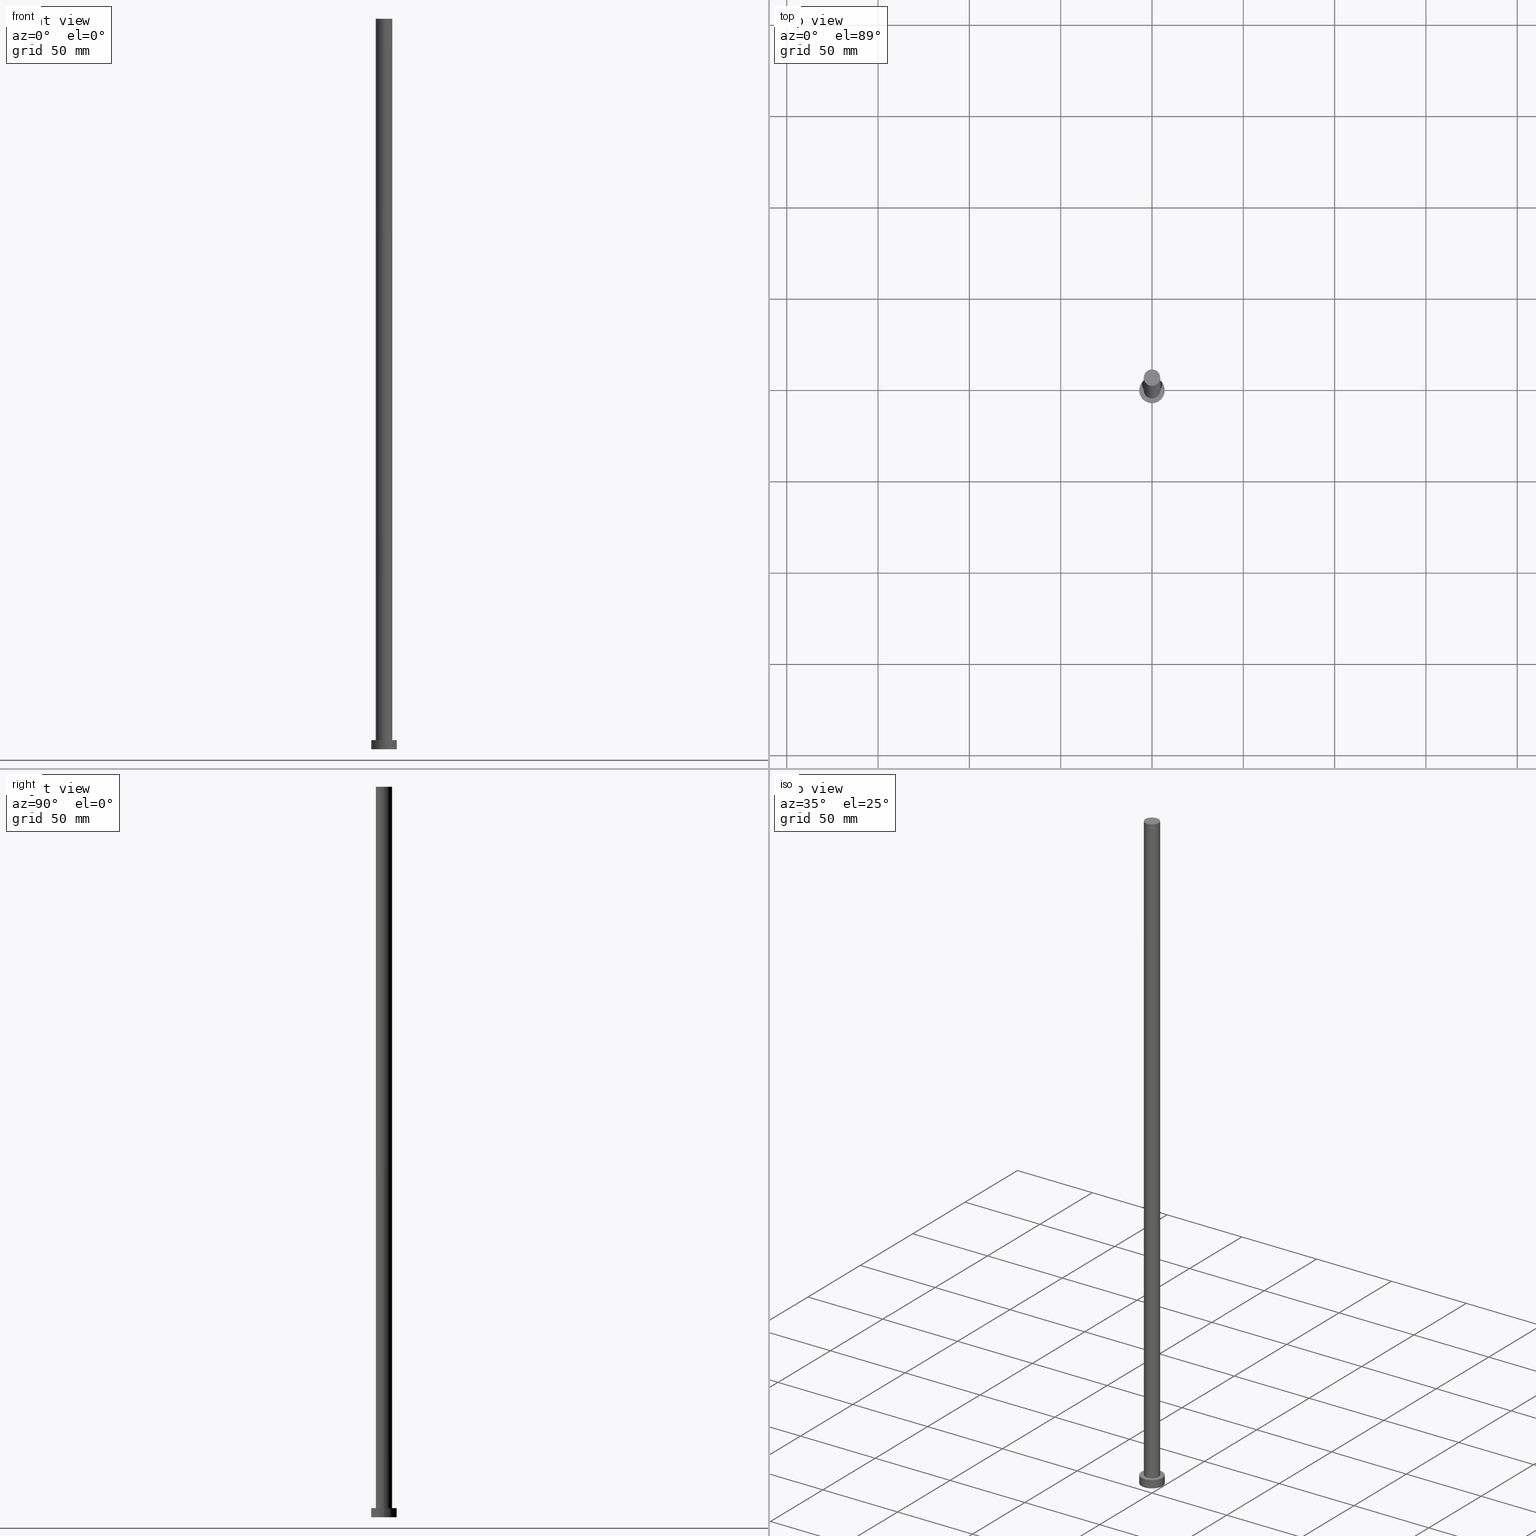
[diagram: canonical four-view strip — front | top / right | iso, engineering-drawing reading convention]
A machine part, canonical four-view strip (front | top / right | iso — engineering-drawing reading convention). The complete STEP part file that produces these views, byte-faithful:
ISO-10303-21;
HEADER;
FILE_DESCRIPTION (( 'STEP AP203' ),
    '1' );
FILE_NAME ('c8f0.STEP',
    '2023-02-13T10:50:09',
    ( '' ),
    ( '' ),
    'SwSTEP 2.0',
    'SolidWorks 2019',
    '' );
FILE_SCHEMA (( 'CONFIG_CONTROL_DESIGN' ));
ENDSEC;

DATA;
#1 = CYLINDRICAL_SURFACE ( 'NONE', #240, 7.000000000000000000 ) ;
#2 = APPLICATION_PROTOCOL_DEFINITION ( 'international standard', 'config_control_design', 1994, #24 ) ;
#3 = CC_DESIGN_PERSON_AND_ORGANIZATION_ASSIGNMENT ( #81, #193, ( #175 ) ) ;
#4 = DIRECTION ( 'NONE',  ( 1.000000000000000000, 0.000000000000000000, 0.000000000000000000 ) ) ;
#5 = CC_DESIGN_APPROVAL ( #76, ( #19 ) ) ;
#6 = PRODUCT_DEFINITION ( 'NEZN�M�', '', #175, #31 ) ;
#7 = APPLICATION_CONTEXT ( 'configuration controlled 3d designs of mechanical parts and assemblies' ) ;
#8 = ORIENTED_EDGE ( 'NONE', *, *, #130, .T. ) ;
#9 = AXIS2_PLACEMENT_3D ( 'NONE', #18, #115, #92 ) ;
#10 = VERTEX_POINT ( 'NONE', #69 ) ;
#11 = AXIS2_PLACEMENT_3D ( 'NONE', #60, #143, #46 ) ;
#12 = APPROVAL ( #80, 'NEUR�EN�' ) ;
#13 = VECTOR ( 'NONE', #237, 1000.000000000000000 ) ;
#14 = COORDINATED_UNIVERSAL_TIME_OFFSET ( 1, 0, .AHEAD. ) ;
#15 = EDGE_LOOP ( 'NONE', ( #132, #171 ) ) ;
#16 = VERTEX_POINT ( 'NONE', #165 ) ;
#17 = EDGE_CURVE ( 'NONE', #16, #84, #164, .T. ) ;
#18 = CARTESIAN_POINT ( 'NONE',  ( 0.000000000000000000, 0.000000000000000000, 5.000000000000000000 ) ) ;
#19 = SECURITY_CLASSIFICATION ( '', '', #252 ) ;
#20 = ADVANCED_BREP_SHAPE_REPRESENTATION ( 'c8f0', ( #134, #178 ), #42 ) ;
#21 = LINE ( 'NONE', #75, #66 ) ;
#22 = APPROVAL_ROLE ( '' ) ;
#23 = PERSON_AND_ORGANIZATION_ROLE ( 'classification_officer' ) ;
#24 = APPLICATION_CONTEXT ( 'configuration controlled 3d designs of mechanical parts and assemblies' ) ;
#25 = CARTESIAN_POINT ( 'NONE',  ( -7.000000000000000000, 0.000000000000000000, 5.000000000000000000 ) ) ;
#26 = ADVANCED_FACE ( 'NONE', ( #48, #49 ), #34, .T. ) ;
#27 = PERSON_AND_ORGANIZATION_ROLE ( 'design_owner' ) ;
#28 = CYLINDRICAL_SURFACE ( 'NONE', #220, 4.500000000000000888 ) ;
#29 = EDGE_LOOP ( 'NONE', ( #70, #184, #223, #241 ) ) ;
#30 = CARTESIAN_POINT ( 'NONE',  ( 0.000000000000000000, 0.000000000000000000, 0.000000000000000000 ) ) ;
#31 = DESIGN_CONTEXT ( 'detailed design', #24, 'design' ) ;
#32 = ORIENTED_EDGE ( 'NONE', *, *, #234, .T. ) ;
#33 = PRODUCT_RELATED_PRODUCT_CATEGORY ( 'detail', '', ( #74 ) ) ;
#34 = PLANE ( 'NONE',  #195 ) ;
#35 = CALENDAR_DATE ( 2023, 13, 2 ) ;
#36 = DIRECTION ( 'NONE',  ( 0.000000000000000000, 0.000000000000000000, 1.000000000000000000 ) ) ;
#37 = VECTOR ( 'NONE', #56, 1000.000000000000000 ) ;
#38 =( NAMED_UNIT ( * ) SI_UNIT ( $, .STERADIAN. ) SOLID_ANGLE_UNIT ( ) );
#39 = VERTEX_POINT ( 'NONE', #128 ) ;
#40 = FACE_OUTER_BOUND ( 'NONE', #72, .T. ) ;
#41 = PERSON_AND_ORGANIZATION ( #62, #185 ) ;
#42 =( GEOMETRIC_REPRESENTATION_CONTEXT ( 3 ) GLOBAL_UNCERTAINTY_ASSIGNED_CONTEXT ( ( #152 ) ) GLOBAL_UNIT_ASSIGNED_CONTEXT ( ( #214, #153, #38 ) ) REPRESENTATION_CONTEXT ( 'NONE', 'WORKASPACE' ) );
#43 = CIRCLE ( 'NONE', #91, 4.500000000000000888 ) ;
#44 = ADVANCED_FACE ( 'NONE', ( #90 ), #52, .T. ) ;
#45 = CIRCLE ( 'NONE', #11, 7.000000000000000000 ) ;
#46 = DIRECTION ( 'NONE',  ( 1.000000000000000000, 0.000000000000000000, 0.000000000000000000 ) ) ;
#47 = LOCAL_TIME ( 11, 50, 9.000000000000000000, #77 ) ;
#48 = FACE_BOUND ( 'NONE', #186, .T. ) ;
#49 = FACE_OUTER_BOUND ( 'NONE', #244, .T. ) ;
#50 = EDGE_CURVE ( 'NONE', #166, #151, #121, .T. ) ;
#51 = APPROVAL_STATUS ( 'not_yet_approved' ) ;
#52 = CYLINDRICAL_SURFACE ( 'NONE', #9, 7.000000000000000000 ) ;
#53 = CALENDAR_DATE ( 2023, 13, 2 ) ;
#54 = CARTESIAN_POINT ( 'NONE',  ( 7.000000000000000000, 8.572527594031473190E-16, 5.000000000000000000 ) ) ;
#55 = CARTESIAN_POINT ( 'NONE',  ( 0.000000000000000000, 0.000000000000000000, 0.000000000000000000 ) ) ;
#56 = DIRECTION ( 'NONE',  ( -0.000000000000000000, -0.000000000000000000, -1.000000000000000000 ) ) ;
#57 = FACE_OUTER_BOUND ( 'NONE', #15, .T. ) ;
#58 = CALENDAR_DATE ( 2023, 13, 2 ) ;
#59 = APPROVAL_PERSON_ORGANIZATION ( #89, #140, #114 ) ;
#60 = CARTESIAN_POINT ( 'NONE',  ( 0.000000000000000000, 0.000000000000000000, 5.000000000000000000 ) ) ;
#61 = DIRECTION ( 'NONE',  ( 1.000000000000000000, 0.000000000000000000, 0.000000000000000000 ) ) ;
#62 = PERSON ( 'NEUR�EN�', 'NEUR�EN�', 'NEUR�EN�', ('NEUR�EN�'), ('NEUR�EN�'), ('NEUR�EN�') ) ;
#63 = CARTESIAN_POINT ( 'NONE',  ( 0.000000000000000000, 0.000000000000000000, 0.000000000000000000 ) ) ;
#64 = LOCAL_TIME ( 11, 50, 9.000000000000000000, #209 ) ;
#65 = DIRECTION ( 'NONE',  ( 1.000000000000000000, 0.000000000000000000, 0.000000000000000000 ) ) ;
#66 = VECTOR ( 'NONE', #235, 1000.000000000000000 ) ;
#67 = ORIENTED_EDGE ( 'NONE', *, *, #130, .F. ) ;
#68 = FACE_OUTER_BOUND ( 'NONE', #239, .T. ) ;
#69 = CARTESIAN_POINT ( 'NONE',  ( 4.500000000000000888, 5.510910596163088569E-16, 400.0000000000000000 ) ) ;
#70 = ORIENTED_EDGE ( 'NONE', *, *, #249, .F. ) ;
#71 = AXIS2_PLACEMENT_3D ( 'NONE', #245, #36, #253 ) ;
#72 = EDGE_LOOP ( 'NONE', ( #210, #147 ) ) ;
#73 = DATE_AND_TIME ( #53, #64 ) ;
#74 = PRODUCT ( 'c8f0', 'c8f0', '', ( #142 ) ) ;
#75 = CARTESIAN_POINT ( 'NONE',  ( 4.500000000000000888, 5.510910596163088569E-16, 400.0000000000000000 ) ) ;
#76 = APPROVAL ( #176, 'NEUR�EN�' ) ;
#77 = COORDINATED_UNIVERSAL_TIME_OFFSET ( 1, 0, .AHEAD. ) ;
#78 = CARTESIAN_POINT ( 'NONE',  ( 0.000000000000000000, 0.000000000000000000, 400.0000000000000000 ) ) ;
#79 = DIRECTION ( 'NONE',  ( -0.000000000000000000, -0.000000000000000000, -1.000000000000000000 ) ) ;
#80 = APPROVAL_STATUS ( 'not_yet_approved' ) ;
#81 = PERSON_AND_ORGANIZATION ( #62, #185 ) ;
#82 = ORIENTED_EDGE ( 'NONE', *, *, #50, .F. ) ;
#83 = CIRCLE ( 'NONE', #227, 4.500000000000000888 ) ;
#84 = VERTEX_POINT ( 'NONE', #250 ) ;
#85 = EDGE_CURVE ( 'NONE', #10, #172, #180, .T. ) ;
#86 = ORIENTED_EDGE ( 'NONE', *, *, #85, .F. ) ;
#87 = AXIS2_PLACEMENT_3D ( 'NONE', #55, #136, #100 ) ;
#88 = ORIENTED_EDGE ( 'NONE', *, *, #230, .F. ) ;
#89 = PERSON_AND_ORGANIZATION ( #62, #185 ) ;
#90 = FACE_OUTER_BOUND ( 'NONE', #29, .T. ) ;
#91 = AXIS2_PLACEMENT_3D ( 'NONE', #156, #201, #61 ) ;
#92 = DIRECTION ( 'NONE',  ( -1.000000000000000000, 0.000000000000000000, 0.000000000000000000 ) ) ;
#93 = APPROVAL_DATE_TIME ( #116, #140 ) ;
#94 = EDGE_CURVE ( 'NONE', #39, #144, #182, .T. ) ;
#95 = DATE_TIME_ROLE ( 'creation_date' ) ;
#96 = AXIS2_PLACEMENT_3D ( 'NONE', #63, #224, #65 ) ;
#97 = PERSON_AND_ORGANIZATION ( #62, #185 ) ;
#98 = DIRECTION ( 'NONE',  ( 1.000000000000000000, 0.000000000000000000, -0.000000000000000000 ) ) ;
#99 = CARTESIAN_POINT ( 'NONE',  ( 0.000000000000000000, 0.000000000000000000, 5.000000000000000000 ) ) ;
#100 = DIRECTION ( 'NONE',  ( 1.000000000000000000, 0.000000000000000000, 0.000000000000000000 ) ) ;
#101 = PERSON_AND_ORGANIZATION ( #62, #185 ) ;
#102 = PRODUCT_DEFINITION_SHAPE ( 'NONE', 'NONE',  #6 ) ;
#103 = CARTESIAN_POINT ( 'NONE',  ( 0.000000000000000000, 0.000000000000000000, 400.0000000000000000 ) ) ;
#104 = CALENDAR_DATE ( 2023, 13, 2 ) ;
#105 = FACE_OUTER_BOUND ( 'NONE', #169, .T. ) ;
#106 = CC_DESIGN_APPROVAL ( #12, ( #6 ) ) ;
#107 = AXIS2_PLACEMENT_3D ( 'NONE', #30, #154, #98 ) ;
#108 = CC_DESIGN_DATE_AND_TIME_ASSIGNMENT ( #187, #95, ( #6 ) ) ;
#109 = DIRECTION ( 'NONE',  ( -0.000000000000000000, -0.000000000000000000, -1.000000000000000000 ) ) ;
#110 = ORIENTED_EDGE ( 'NONE', *, *, #94, .T. ) ;
#111 = ORIENTED_EDGE ( 'NONE', *, *, #234, .F. ) ;
#112 = ORIENTED_EDGE ( 'NONE', *, *, #246, .F. ) ;
#113 = APPROVAL_DATE_TIME ( #73, #12 ) ;
#114 = APPROVAL_ROLE ( '' ) ;
#115 = DIRECTION ( 'NONE',  ( -0.000000000000000000, -0.000000000000000000, -1.000000000000000000 ) ) ;
#116 = DATE_AND_TIME ( #35, #127 ) ;
#117 = DIRECTION ( 'NONE',  ( 0.000000000000000000, 0.000000000000000000, 1.000000000000000000 ) ) ;
#118 = EDGE_CURVE ( 'NONE', #151, #166, #83, .T. ) ;
#119 = LINE ( 'NONE', #25, #168 ) ;
#120 = DIRECTION ( 'NONE',  ( -0.000000000000000000, -0.000000000000000000, -1.000000000000000000 ) ) ;
#121 = CIRCLE ( 'NONE', #71, 4.500000000000000888 ) ;
#122 = CARTESIAN_POINT ( 'NONE',  ( 0.000000000000000000, 0.000000000000000000, 5.000000000000000000 ) ) ;
#123 = CARTESIAN_POINT ( 'NONE',  ( -4.500000000000000888, 0.000000000000000000, 400.0000000000000000 ) ) ;
#124 = CC_DESIGN_PERSON_AND_ORGANIZATION_ASSIGNMENT ( #41, #23, ( #19 ) ) ;
#125 = CARTESIAN_POINT ( 'NONE',  ( 7.000000000000000000, 8.572527594031473190E-16, 5.000000000000000000 ) ) ;
#126 = ORIENTED_EDGE ( 'NONE', *, *, #17, .T. ) ;
#127 = LOCAL_TIME ( 11, 50, 9.000000000000000000, #229 ) ;
#128 = CARTESIAN_POINT ( 'NONE',  ( -7.000000000000000000, 0.000000000000000000, 5.000000000000000000 ) ) ;
#129 = CARTESIAN_POINT ( 'NONE',  ( 0.000000000000000000, 0.000000000000000000, 0.000000000000000000 ) ) ;
#130 = EDGE_CURVE ( 'NONE', #10, #166, #21, .T. ) ;
#131 = PERSON_AND_ORGANIZATION_ROLE ( 'creator' ) ;
#132 = ORIENTED_EDGE ( 'NONE', *, *, #202, .F. ) ;
#133 = CIRCLE ( 'NONE', #87, 7.000000000000000000 ) ;
#134 = MANIFOLD_SOLID_BREP ( 'P�idat vysunut�m3', #213 ) ;
#135 = DIRECTION ( 'NONE',  ( 0.000000000000000000, 0.000000000000000000, 1.000000000000000000 ) ) ;
#136 = DIRECTION ( 'NONE',  ( 0.000000000000000000, 0.000000000000000000, 1.000000000000000000 ) ) ;
#137 = DIRECTION ( 'NONE',  ( 1.000000000000000000, 0.000000000000000000, 0.000000000000000000 ) ) ;
#138 = DATE_TIME_ROLE ( 'classification_date' ) ;
#139 = APPROVAL_DATE_TIME ( #254, #76 ) ;
#140 = APPROVAL ( #51, 'NEUR�EN�' ) ;
#141 = CARTESIAN_POINT ( 'NONE',  ( -4.500000000000000888, 0.000000000000000000, 400.0000000000000000 ) ) ;
#142 = MECHANICAL_CONTEXT ( 'NONE', #7, 'mechanical' ) ;
#143 = DIRECTION ( 'NONE',  ( 0.000000000000000000, 0.000000000000000000, 1.000000000000000000 ) ) ;
#144 = VERTEX_POINT ( 'NONE', #54 ) ;
#145 = ADVANCED_FACE ( 'NONE', ( #40 ), #199, .T. ) ;
#146 = CC_DESIGN_PERSON_AND_ORGANIZATION_ASSIGNMENT ( #251, #27, ( #74 ) ) ;
#147 = ORIENTED_EDGE ( 'NONE', *, *, #85, .T. ) ;
#148 = CC_DESIGN_SECURITY_CLASSIFICATION ( #19, ( #175 ) ) ;
#149 = LOCAL_TIME ( 11, 50, 9.000000000000000000, #158 ) ;
#150 = CC_DESIGN_DATE_AND_TIME_ASSIGNMENT ( #160, #138, ( #19 ) ) ;
#151 = VERTEX_POINT ( 'NONE', #216 ) ;
#152 = UNCERTAINTY_MEASURE_WITH_UNIT (LENGTH_MEASURE( 1.000000000000000082E-05 ), #214, 'distance_accuracy_value', 'NONE');
#153 =( NAMED_UNIT ( * ) PLANE_ANGLE_UNIT ( ) SI_UNIT ( $, .RADIAN. ) );
#154 = DIRECTION ( 'NONE',  ( 0.000000000000000000, 0.000000000000000000, 1.000000000000000000 ) ) ;
#155 = DIRECTION ( 'NONE',  ( 0.000000000000000000, 0.000000000000000000, 1.000000000000000000 ) ) ;
#156 = CARTESIAN_POINT ( 'NONE',  ( 0.000000000000000000, 0.000000000000000000, 400.0000000000000000 ) ) ;
#157 = DIRECTION ( 'NONE',  ( -1.000000000000000000, 0.000000000000000000, 0.000000000000000000 ) ) ;
#158 = COORDINATED_UNIVERSAL_TIME_OFFSET ( 1, 0, .AHEAD. ) ;
#159 = CARTESIAN_POINT ( 'NONE',  ( 0.000000000000000000, 0.000000000000000000, 400.0000000000000000 ) ) ;
#160 = DATE_AND_TIME ( #104, #47 ) ;
#161 = EDGE_CURVE ( 'NONE', #39, #84, #119, .T. ) ;
#162 = CC_DESIGN_APPROVAL ( #140, ( #175 ) ) ;
#163 = ORIENTED_EDGE ( 'NONE', *, *, #161, .F. ) ;
#164 = CIRCLE ( 'NONE', #96, 7.000000000000000000 ) ;
#165 = CARTESIAN_POINT ( 'NONE',  ( 7.000000000000000000, 8.572527594031473190E-16, 0.000000000000000000 ) ) ;
#166 = VERTEX_POINT ( 'NONE', #215 ) ;
#167 = ORIENTED_EDGE ( 'NONE', *, *, #230, .T. ) ;
#168 = VECTOR ( 'NONE', #177, 1000.000000000000000 ) ;
#169 = EDGE_LOOP ( 'NONE', ( #111, #174, #126, #163 ) ) ;
#170 = DIRECTION ( 'NONE',  ( 0.000000000000000000, 0.000000000000000000, 1.000000000000000000 ) ) ;
#171 = ORIENTED_EDGE ( 'NONE', *, *, #17, .F. ) ;
#172 = VERTEX_POINT ( 'NONE', #141 ) ;
#173 = PERSON_AND_ORGANIZATION ( #62, #185 ) ;
#174 = ORIENTED_EDGE ( 'NONE', *, *, #249, .T. ) ;
#175 = PRODUCT_DEFINITION_FORMATION_WITH_SPECIFIED_SOURCE ( 'LIBOVOLN�', '', #74, .NOT_KNOWN. ) ;
#176 = APPROVAL_STATUS ( 'not_yet_approved' ) ;
#177 = DIRECTION ( 'NONE',  ( -0.000000000000000000, -0.000000000000000000, -1.000000000000000000 ) ) ;
#178 = AXIS2_PLACEMENT_3D ( 'NONE', #129, #208, #4 ) ;
#179 = AXIS2_PLACEMENT_3D ( 'NONE', #159, #135, #255 ) ;
#180 = CIRCLE ( 'NONE', #200, 4.500000000000000888 ) ;
#181 = FACE_OUTER_BOUND ( 'NONE', #206, .T. ) ;
#182 = CIRCLE ( 'NONE', #192, 7.000000000000000000 ) ;
#183 = CC_DESIGN_PERSON_AND_ORGANIZATION_ASSIGNMENT ( #207, #131, ( #6 ) ) ;
#184 = ORIENTED_EDGE ( 'NONE', *, *, #94, .F. ) ;
#185 = ORGANIZATION ( 'NEUR�EN�', 'NEUR�EN�', '' ) ;
#186 = EDGE_LOOP ( 'NONE', ( #236, #82 ) ) ;
#187 = DATE_AND_TIME ( #211, #247 ) ;
#188 = CARTESIAN_POINT ( 'NONE',  ( 0.000000000000000000, 0.000000000000000000, 400.0000000000000000 ) ) ;
#189 = APPROVAL_PERSON_ORGANIZATION ( #101, #76, #22 ) ;
#190 = ADVANCED_FACE ( 'NONE', ( #105 ), #1, .T. ) ;
#191 = DIRECTION ( 'NONE',  ( 1.000000000000000000, 0.000000000000000000, 0.000000000000000000 ) ) ;
#192 = AXIS2_PLACEMENT_3D ( 'NONE', #196, #155, #212 ) ;
#193 = PERSON_AND_ORGANIZATION_ROLE ( 'design_supplier' ) ;
#194 = ADVANCED_FACE ( 'NONE', ( #57 ), #218, .F. ) ;
#195 = AXIS2_PLACEMENT_3D ( 'NONE', #205, #170, #243 ) ;
#196 = CARTESIAN_POINT ( 'NONE',  ( 0.000000000000000000, 0.000000000000000000, 5.000000000000000000 ) ) ;
#197 = SHAPE_DEFINITION_REPRESENTATION ( #102, #20 ) ;
#198 = APPROVAL_PERSON_ORGANIZATION ( #97, #12, #248 ) ;
#199 = PLANE ( 'NONE',  #179 ) ;
#200 = AXIS2_PLACEMENT_3D ( 'NONE', #103, #233, #137 ) ;
#201 = DIRECTION ( 'NONE',  ( 0.000000000000000000, 0.000000000000000000, 1.000000000000000000 ) ) ;
#202 = EDGE_CURVE ( 'NONE', #84, #16, #133, .T. ) ;
#203 = ORIENTED_EDGE ( 'NONE', *, *, #118, .T. ) ;
#204 = ORIENTED_EDGE ( 'NONE', *, *, #50, .T. ) ;
#205 = CARTESIAN_POINT ( 'NONE',  ( 0.000000000000000000, 0.000000000000000000, 5.000000000000000000 ) ) ;
#206 = EDGE_LOOP ( 'NONE', ( #67, #112, #167, #203 ) ) ;
#207 = PERSON_AND_ORGANIZATION ( #62, #185 ) ;
#208 = DIRECTION ( 'NONE',  ( 0.000000000000000000, 0.000000000000000000, 1.000000000000000000 ) ) ;
#209 = COORDINATED_UNIVERSAL_TIME_OFFSET ( 1, 0, .AHEAD. ) ;
#210 = ORIENTED_EDGE ( 'NONE', *, *, #246, .T. ) ;
#211 = CALENDAR_DATE ( 2023, 13, 2 ) ;
#212 = DIRECTION ( 'NONE',  ( 1.000000000000000000, 0.000000000000000000, 0.000000000000000000 ) ) ;
#213 = CLOSED_SHELL ( 'NONE', ( #225, #190, #44, #26, #194, #242, #145 ) ) ;
#214 =( LENGTH_UNIT ( ) NAMED_UNIT ( * ) SI_UNIT ( .MILLI., .METRE. ) );
#215 = CARTESIAN_POINT ( 'NONE',  ( 4.500000000000000888, 5.510910596163088569E-16, 5.000000000000000000 ) ) ;
#216 = CARTESIAN_POINT ( 'NONE',  ( -4.500000000000000888, 0.000000000000000000, 5.000000000000000000 ) ) ;
#217 = LINE ( 'NONE', #123, #13 ) ;
#218 = PLANE ( 'NONE',  #107 ) ;
#219 = CC_DESIGN_PERSON_AND_ORGANIZATION_ASSIGNMENT ( #173, #231, ( #175 ) ) ;
#220 = AXIS2_PLACEMENT_3D ( 'NONE', #78, #120, #238 ) ;
#221 = DIRECTION ( 'NONE',  ( -1.000000000000000000, 0.000000000000000000, 0.000000000000000000 ) ) ;
#222 = LINE ( 'NONE', #125, #37 ) ;
#223 = ORIENTED_EDGE ( 'NONE', *, *, #161, .T. ) ;
#224 = DIRECTION ( 'NONE',  ( 0.000000000000000000, 0.000000000000000000, 1.000000000000000000 ) ) ;
#225 = ADVANCED_FACE ( 'NONE', ( #68 ), #228, .T. ) ;
#226 = APPLICATION_PROTOCOL_DEFINITION ( 'international standard', 'config_control_design', 1994, #7 ) ;
#227 = AXIS2_PLACEMENT_3D ( 'NONE', #122, #117, #191 ) ;
#228 = CYLINDRICAL_SURFACE ( 'NONE', #232, 4.500000000000000888 ) ;
#229 = COORDINATED_UNIVERSAL_TIME_OFFSET ( 1, 0, .AHEAD. ) ;
#230 = EDGE_CURVE ( 'NONE', #172, #151, #217, .T. ) ;
#231 = PERSON_AND_ORGANIZATION_ROLE ( 'creator' ) ;
#232 = AXIS2_PLACEMENT_3D ( 'NONE', #188, #109, #221 ) ;
#233 = DIRECTION ( 'NONE',  ( 0.000000000000000000, 0.000000000000000000, 1.000000000000000000 ) ) ;
#234 = EDGE_CURVE ( 'NONE', #144, #39, #45, .T. ) ;
#235 = DIRECTION ( 'NONE',  ( -0.000000000000000000, -0.000000000000000000, -1.000000000000000000 ) ) ;
#236 = ORIENTED_EDGE ( 'NONE', *, *, #118, .F. ) ;
#237 = DIRECTION ( 'NONE',  ( -0.000000000000000000, -0.000000000000000000, -1.000000000000000000 ) ) ;
#238 = DIRECTION ( 'NONE',  ( -1.000000000000000000, 0.000000000000000000, 0.000000000000000000 ) ) ;
#239 = EDGE_LOOP ( 'NONE', ( #86, #8, #204, #88 ) ) ;
#240 = AXIS2_PLACEMENT_3D ( 'NONE', #99, #79, #157 ) ;
#241 = ORIENTED_EDGE ( 'NONE', *, *, #202, .T. ) ;
#242 = ADVANCED_FACE ( 'NONE', ( #181 ), #28, .T. ) ;
#243 = DIRECTION ( 'NONE',  ( 1.000000000000000000, 0.000000000000000000, -0.000000000000000000 ) ) ;
#244 = EDGE_LOOP ( 'NONE', ( #110, #32 ) ) ;
#245 = CARTESIAN_POINT ( 'NONE',  ( 0.000000000000000000, 0.000000000000000000, 5.000000000000000000 ) ) ;
#246 = EDGE_CURVE ( 'NONE', #172, #10, #43, .T. ) ;
#247 = LOCAL_TIME ( 11, 50, 9.000000000000000000, #14 ) ;
#248 = APPROVAL_ROLE ( '' ) ;
#249 = EDGE_CURVE ( 'NONE', #144, #16, #222, .T. ) ;
#250 = CARTESIAN_POINT ( 'NONE',  ( -7.000000000000000000, 0.000000000000000000, 0.000000000000000000 ) ) ;
#251 = PERSON_AND_ORGANIZATION ( #62, #185 ) ;
#252 = SECURITY_CLASSIFICATION_LEVEL ( 'unclassified' ) ;
#253 = DIRECTION ( 'NONE',  ( 1.000000000000000000, 0.000000000000000000, 0.000000000000000000 ) ) ;
#254 = DATE_AND_TIME ( #58, #149 ) ;
#255 = DIRECTION ( 'NONE',  ( 1.000000000000000000, 0.000000000000000000, -0.000000000000000000 ) ) ;
ENDSEC;
END-ISO-10303-21;
